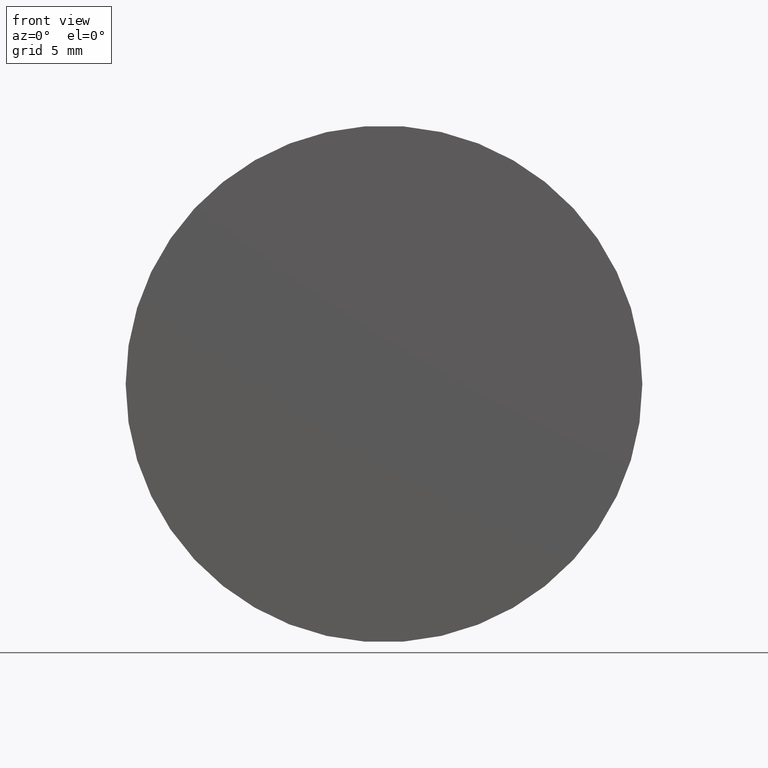
[diagram: clean part render]
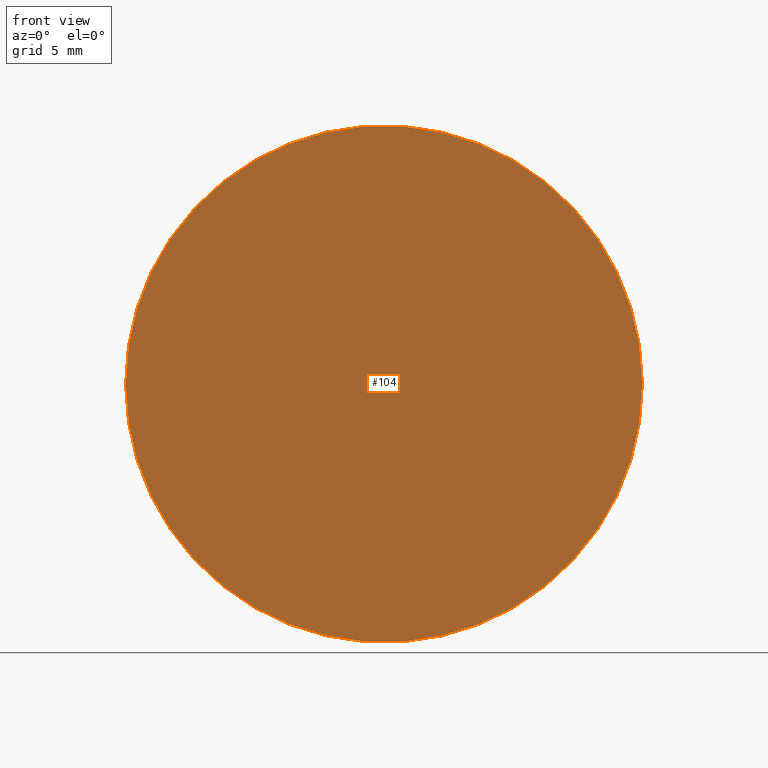
[diagram: same view with one face highlighted and labeled with its STEP entity id]
A machine part, front view. The second image highlights one B-rep face of the part: STEP entity #104.
In plain terms, the highlighted planar face has unit normal (0, -1, 0).
Its self-contained STEP definition (entity closure, byte-faithful):
#4 = DIRECTION ( 'NONE',  ( -1.000000000000000000, -1.169672205489146743E-19, 0.000000000000000000 ) ) ;
#18 = CARTESIAN_POINT ( 'NONE',  ( 1.880790961315660013E-34, -1.734723475976807094E-15, 0.000000000000000000 ) ) ;
#19 = CIRCLE ( 'NONE', #36, 12.50000000000000000 ) ;
#21 = AXIS2_PLACEMENT_3D ( 'NONE', #188, #110, #172 ) ;
#27 = DIRECTION ( 'NONE',  ( -1.000000000000000000, -1.169672205489146743E-19, 0.000000000000000000 ) ) ;
#36 = AXIS2_PLACEMENT_3D ( 'NONE', #18, #43, #27 ) ;
#43 = DIRECTION ( 'NONE',  ( -1.169672205489117373E-19, 1.000000000000000000, -0.000000000000000000 ) ) ;
#57 = EDGE_CURVE ( 'NONE', #173, #182, #128, .T. ) ;
#66 = CARTESIAN_POINT ( 'NONE',  ( 12.50000000000000000, -1.733261385719945655E-15, 1.530808498934191521E-15 ) ) ;
#78 = ORIENTED_EDGE ( 'NONE', *, *, #97, .F. ) ;
#79 = AXIS2_PLACEMENT_3D ( 'NONE', #89, #92, #4 ) ;
#89 = CARTESIAN_POINT ( 'NONE',  ( 1.880790961315660013E-34, -1.734723475976807094E-15, 0.000000000000000000 ) ) ;
#92 = DIRECTION ( 'NONE',  ( -1.169672205489117373E-19, 1.000000000000000000, -0.000000000000000000 ) ) ;
#97 = EDGE_CURVE ( 'NONE', #182, #173, #19, .T. ) ;
#104 = ADVANCED_FACE ( 'NONE', ( #171 ), #152, .T. ) ;
#110 = DIRECTION ( 'NONE',  ( 1.169672205489117373E-19, -1.000000000000000000, 0.000000000000000000 ) ) ;
#119 = CARTESIAN_POINT ( 'NONE',  ( -12.50000000000000000, -1.736185566233668534E-15, 0.000000000000000000 ) ) ;
#128 = CIRCLE ( 'NONE', #79, 12.50000000000000000 ) ;
#139 = ORIENTED_EDGE ( 'NONE', *, *, #57, .F. ) ;
#152 = PLANE ( 'NONE',  #21 ) ;
#171 = FACE_OUTER_BOUND ( 'NONE', #186, .T. ) ;
#172 = DIRECTION ( 'NONE',  ( 1.000000000000000000, 1.169672205489117373E-19, 0.000000000000000000 ) ) ;
#173 = VERTEX_POINT ( 'NONE', #119 ) ;
#182 = VERTEX_POINT ( 'NONE', #66 ) ;
#186 = EDGE_LOOP ( 'NONE', ( #139, #78 ) ) ;
#188 = CARTESIAN_POINT ( 'NONE',  ( 8.944169933972368221E-35, -7.646732043386650409E-16, 0.000000000000000000 ) ) ;